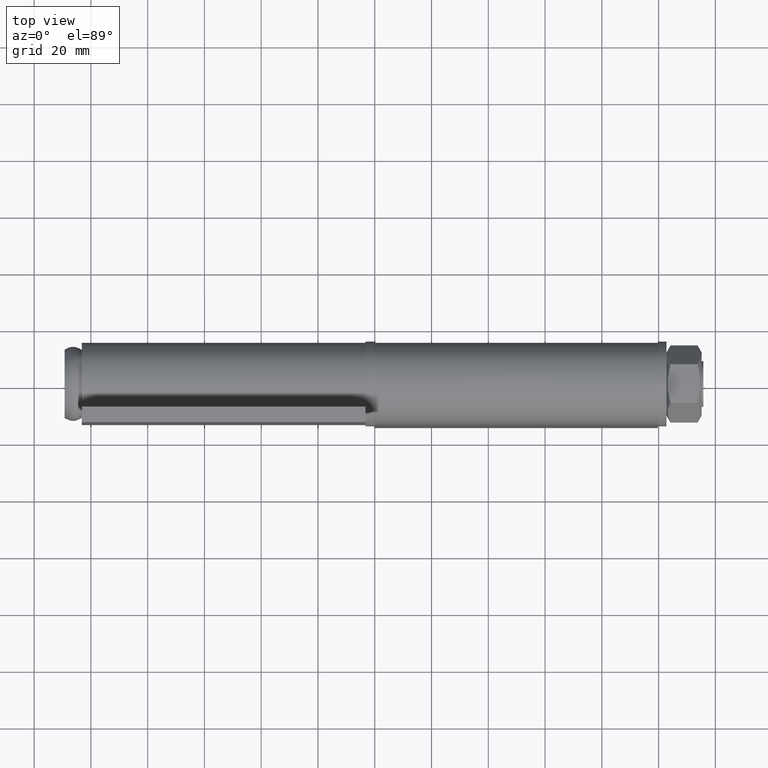
[diagram: clean part render]
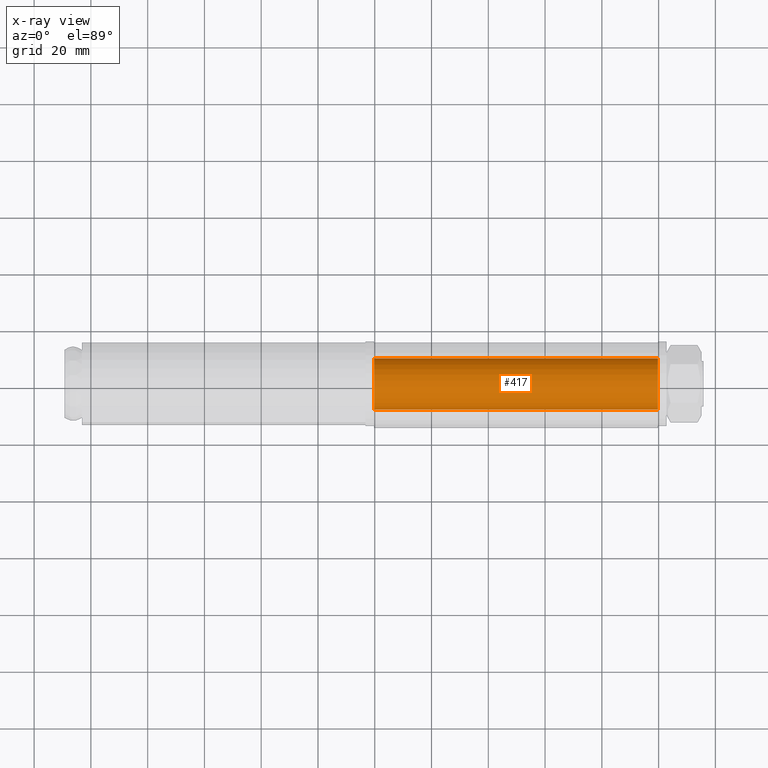
[diagram: x-ray — body ghosted, one internal face saturated and labeled with its STEP entity id]
A machine part, top view, then the same camera in x-ray: the body is ghosted and one INTERNAL B-rep face — a face not visible from any outside direction — is saturated and labeled: STEP entity #417.
In plain terms, the highlighted cylindrical surface (edge-blend (fillet) strip) has radius 9 mm, axis along (-1, -0, -0).
Its self-contained STEP definition (entity closure, byte-faithful):
#57=LINE('',#734,#77);
#59=LINE('',#740,#79);
#77=VECTOR('',#529,100.);
#79=VECTOR('',#535,100.);
#106=CYLINDRICAL_SURFACE('',#454,8.99999999999999);
#132=FACE_OUTER_BOUND('',#162,.T.);
#162=EDGE_LOOP('',(#314,#315,#316,#317));
#195=CIRCLE('',#455,8.99999999999999);
#196=CIRCLE('',#456,8.99999999999999);
#217=VERTEX_POINT('',#731);
#218=VERTEX_POINT('',#733);
#219=VERTEX_POINT('',#737);
#220=VERTEX_POINT('',#739);
#256=EDGE_CURVE('',#218,#217,#57,.T.);
#258=EDGE_CURVE('',#217,#219,#195,.T.);
#259=EDGE_CURVE('',#220,#219,#59,.T.);
#260=EDGE_CURVE('',#220,#218,#196,.T.);
#314=ORIENTED_EDGE('',*,*,#258,.T.);
#315=ORIENTED_EDGE('',*,*,#259,.F.);
#316=ORIENTED_EDGE('',*,*,#260,.T.);
#317=ORIENTED_EDGE('',*,*,#256,.T.);
#417=ADVANCED_FACE('',(#132),#106,.F.);
#454=AXIS2_PLACEMENT_3D('',#736,#531,#532);
#455=AXIS2_PLACEMENT_3D('',#738,#533,#534);
#456=AXIS2_PLACEMENT_3D('',#741,#536,#537);
#529=DIRECTION('',(0.,0.,1.));
#531=DIRECTION('center_axis',(0.,0.,1.));
#532=DIRECTION('ref_axis',(1.,0.,0.));
#533=DIRECTION('center_axis',(0.,0.,1.));
#534=DIRECTION('ref_axis',(1.,0.,0.));
#535=DIRECTION('',(0.,0.,1.));
#536=DIRECTION('center_axis',(0.,0.,-1.));
#537=DIRECTION('ref_axis',(1.,0.,0.));
#731=CARTESIAN_POINT('',(4.63263002376526E-16,5.50000000000001,100.));
#733=CARTESIAN_POINT('',(4.63263002376526E-16,5.50000000000001,0.));
#734=CARTESIAN_POINT('',(4.63263002376526E-16,5.50000000000001,0.));
#736=CARTESIAN_POINT('Origin',(-1.77573785876366E-15,14.5,0.));
#737=CARTESIAN_POINT('',(-7.46674669787777,9.47529167515852,100.));
#738=CARTESIAN_POINT('Origin',(-1.77573785876366E-15,14.5,100.));
#739=CARTESIAN_POINT('',(-7.46674669787777,9.47529167515852,0.));
#740=CARTESIAN_POINT('',(-7.46674669787777,9.47529167515852,0.));
#741=CARTESIAN_POINT('Origin',(-1.77573785876366E-15,14.5,0.));